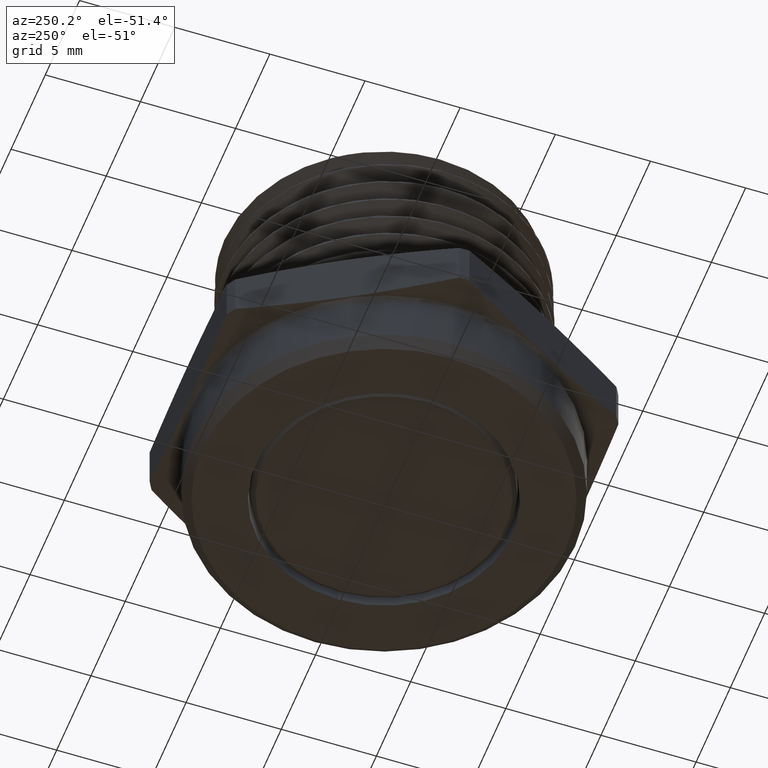
[diagram: clean part render]
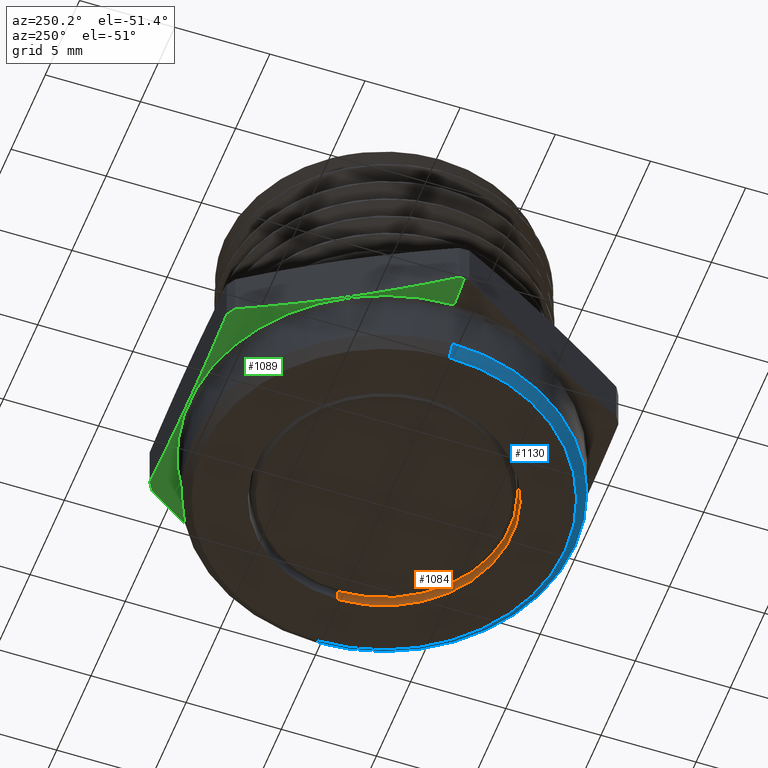
[diagram: same view with three faces highlighted in distinct colors, each labeled with its STEP entity id]
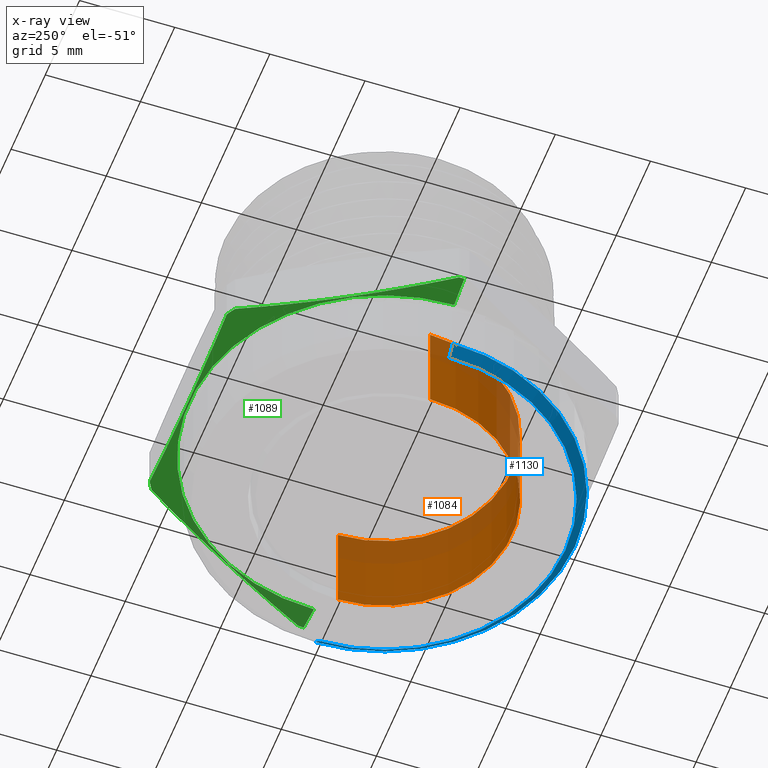
[diagram: x-ray of the same camera — body ghosted, the three highlighted faces saturated]
A machine part, auxiliary view with three faces highlighted in distinct colors.
The next image is the same camera in x-ray (body ghosted, the three faces saturated) — at least one of them is partly hidden behind the body in this view.
Their STEP definitions:

[orange] entity #1084 — the highlighted cylindrical surface (partial cylindrical patch) has radius 6.731 mm, axis along (0, 0, -1).
#148 = CIRCLE ( 'NONE', #2843, 0.2649999999999999600 ) ;
#162 = LINE ( 'NONE', #2186, #1503 ) ;
#705 = VERTEX_POINT ( 'NONE', #3298 ) ;
#711 = VERTEX_POINT ( 'NONE', #3282 ) ;
#756 = EDGE_LOOP ( 'NONE', ( #2370, #2384, #2369, #3367 ) ) ;
#889 = FACE_OUTER_BOUND ( 'NONE', #756, .T. ) ;
#892 = CYLINDRICAL_SURFACE ( 'NONE', #2776, 0.2649999999999999600 ) ;
#1084 = ADVANCED_FACE ( 'NONE', ( #889 ), #892, .F. ) ;
#1503 = VECTOR ( 'NONE', #2187, 39.37007874015748100 ) ;
#1504 = LINE ( 'NONE', #2181, #1507 ) ;
#1505 = CIRCLE ( 'NONE', #2850, 0.2649999999999999600 ) ;
#1507 = VECTOR ( 'NONE', #2182, 39.37007874015748100 ) ;
#2157 = CARTESIAN_POINT ( 'NONE',  ( -1.224646799147303500E-018, 0.0000000000000000000, 0.07099999999999999400 ) ) ;
#2158 = DIRECTION ( 'NONE',  ( -2.296162711943753400E-033, 0.0000000000000000000, 1.000000000000000000 ) ) ;
#2159 = DIRECTION ( 'NONE',  ( 1.000000000000000000, 0.0000000000000000000, 0.0000000000000000000 ) ) ;
#2181 = CARTESIAN_POINT ( 'NONE',  ( -0.2649999999999999600, 0.0000000000000000000, -0.1300000000000000000 ) ) ;
#2182 = DIRECTION ( 'NONE',  ( 2.296162711943753400E-033, -0.0000000000000000000, -1.000000000000000000 ) ) ;
#2186 = CARTESIAN_POINT ( 'NONE',  ( 0.2649999999999999600, 3.245314017740485600E-017, -0.1300000000000000000 ) ) ;
#2187 = DIRECTION ( 'NONE',  ( 2.296162711943753400E-033, -0.0000000000000000000, -1.000000000000000000 ) ) ;
#2188 = CARTESIAN_POINT ( 'NONE',  ( -1.224646799147303100E-018, 0.0000000000000000000, -0.1300000000000000000 ) ) ;
#2189 = DIRECTION ( 'NONE',  ( 2.296162711943753400E-033, -0.0000000000000000000, -1.000000000000000000 ) ) ;
#2190 = DIRECTION ( 'NONE',  ( -1.000000000000000000, 0.0000000000000000000, 0.0000000000000000000 ) ) ;
#2311 = EDGE_CURVE ( 'NONE', #711, #705, #148, .T. ) ;
#2322 = EDGE_CURVE ( 'NONE', #705, #3404, #162, .T. ) ;
#2323 = EDGE_CURVE ( 'NONE', #3404, #3403, #1505, .T. ) ;
#2324 = EDGE_CURVE ( 'NONE', #711, #3403, #1504, .T. ) ;
#2369 = ORIENTED_EDGE ( 'NONE', *, *, #2323, .T. ) ;
#2370 = ORIENTED_EDGE ( 'NONE', *, *, #2311, .T. ) ;
#2384 = ORIENTED_EDGE ( 'NONE', *, *, #2322, .T. ) ;
#2776 = AXIS2_PLACEMENT_3D ( 'NONE', #3263, #3264, #3265 ) ;
#2843 = AXIS2_PLACEMENT_3D ( 'NONE', #2157, #2158, #2159 ) ;
#2850 = AXIS2_PLACEMENT_3D ( 'NONE', #2188, #2189, #2190 ) ;
#3263 = CARTESIAN_POINT ( 'NONE',  ( -1.224646799147303100E-018, 0.0000000000000000000, -0.1300000000000000000 ) ) ;
#3264 = DIRECTION ( 'NONE',  ( 2.296162711943753400E-033, -0.0000000000000000000, -1.000000000000000000 ) ) ;
#3265 = DIRECTION ( 'NONE',  ( -1.000000000000000000, 0.0000000000000000000, 0.0000000000000000000 ) ) ;
#3282 = CARTESIAN_POINT ( 'NONE',  ( -0.2649999999999999600, 0.0000000000000000000, 0.07099999999999999400 ) ) ;
#3298 = CARTESIAN_POINT ( 'NONE',  ( 0.2649999999999999600, 3.245314017740485600E-017, 0.07099999999999999400 ) ) ;
#3367 = ORIENTED_EDGE ( 'NONE', *, *, #2324, .F. ) ;
#3403 = VERTEX_POINT ( 'NONE', #3527 ) ;
#3404 = VERTEX_POINT ( 'NONE', #3528 ) ;
#3527 = CARTESIAN_POINT ( 'NONE',  ( -0.2649999999999999600, 0.0000000000000000000, -0.1300000000000000000 ) ) ;
#3528 = CARTESIAN_POINT ( 'NONE',  ( 0.2649999999999999600, 3.245314017740485600E-017, -0.1300000000000000000 ) ) ;

[blue] entity #1130 — the highlighted conical surface has half-angle 45 deg.
#105 = FACE_OUTER_BOUND ( 'NONE', #1693, .T. ) ;
#109 = CONICAL_SURFACE ( 'NONE', #2815, 0.3750000000000008300, 0.7853981633974482800 ) ;
#451 = AXIS2_PLACEMENT_3D ( 'NONE', #5073, #5074, #5075 ) ;
#453 = AXIS2_PLACEMENT_3D ( 'NONE', #5079, #5080, #5081 ) ;
#713 = VERTEX_POINT ( 'NONE', #3280 ) ;
#1130 = ADVANCED_FACE ( 'NONE', ( #105 ), #109, .T. ) ;
#1506 = LINE ( 'NONE', #2192, #1511 ) ;
#1510 = LINE ( 'NONE', #2197, #1514 ) ;
#1511 = VECTOR ( 'NONE', #2191, 39.37007874015748900 ) ;
#1514 = VECTOR ( 'NONE', #2196, 39.37007874015748900 ) ;
#1613 = CIRCLE ( 'NONE', #451, 0.3950000000000000200 ) ;
#1616 = CIRCLE ( 'NONE', #453, 0.3750000000000008300 ) ;
#1693 = EDGE_LOOP ( 'NONE', ( #3068, #5429, #3075, #3055 ) ) ;
#2191 = DIRECTION ( 'NONE',  ( -0.7071067811865474600, 8.659560562354932900E-017, 0.7071067811865474600 ) ) ;
#2192 = CARTESIAN_POINT ( 'NONE',  ( -0.3750000000000008300, 4.592425496802585300E-017, -0.1300000000000000000 ) ) ;
#2196 = DIRECTION ( 'NONE',  ( 0.7071067811865474600, 0.0000000000000000000, 0.7071067811865474600 ) ) ;
#2197 = CARTESIAN_POINT ( 'NONE',  ( 0.3750000000000008300, 0.0000000000000000000, -0.1300000000000000000 ) ) ;
#2326 = EDGE_CURVE ( 'NONE', #713, #3400, #1506, .T. ) ;
#2328 = EDGE_CURVE ( 'NONE', #3405, #3401, #1510, .T. ) ;
#2815 = AXIS2_PLACEMENT_3D ( 'NONE', #3178, #3179, #3176 ) ;
#3055 = ORIENTED_EDGE ( 'NONE', *, *, #5546, .F. ) ;
#3068 = ORIENTED_EDGE ( 'NONE', *, *, #2326, .F. ) ;
#3075 = ORIENTED_EDGE ( 'NONE', *, *, #2328, .T. ) ;
#3176 = DIRECTION ( 'NONE',  ( 1.000000000000000000, 0.0000000000000000000, 0.0000000000000000000 ) ) ;
#3178 = CARTESIAN_POINT ( 'NONE',  ( 0.0000000000000000000, 0.0000000000000000000, -0.1300000000000000000 ) ) ;
#3179 = DIRECTION ( 'NONE',  ( 0.0000000000000000000, 0.0000000000000000000, 1.000000000000000000 ) ) ;
#3280 = CARTESIAN_POINT ( 'NONE',  ( -0.3750000000000008300, 4.714890176717314800E-017, -0.1300000000000000000 ) ) ;
#3400 = VERTEX_POINT ( 'NONE', #3524 ) ;
#3401 = VERTEX_POINT ( 'NONE', #3525 ) ;
#3405 = VERTEX_POINT ( 'NONE', #3529 ) ;
#3524 = CARTESIAN_POINT ( 'NONE',  ( -0.3950000000000000200, 4.837354856632044300E-017, -0.1100000000000008200 ) ) ;
#3525 = CARTESIAN_POINT ( 'NONE',  ( 0.3950000000000000200, 0.0000000000000000000, -0.1100000000000008200 ) ) ;
#3529 = CARTESIAN_POINT ( 'NONE',  ( 0.3750000000000008300, 0.0000000000000000000, -0.1300000000000000000 ) ) ;
#5073 = CARTESIAN_POINT ( 'NONE',  ( 0.0000000000000000000, 0.0000000000000000000, -0.1100000000000008200 ) ) ;
#5074 = DIRECTION ( 'NONE',  ( 0.0000000000000000000, 0.0000000000000000000, 1.000000000000000000 ) ) ;
#5075 = DIRECTION ( 'NONE',  ( -1.000000000000000000, 0.0000000000000000000, 0.0000000000000000000 ) ) ;
#5079 = CARTESIAN_POINT ( 'NONE',  ( 0.0000000000000000000, 0.0000000000000000000, -0.1300000000000000000 ) ) ;
#5080 = DIRECTION ( 'NONE',  ( 0.0000000000000000000, 0.0000000000000000000, -1.000000000000000000 ) ) ;
#5081 = DIRECTION ( 'NONE',  ( -1.000000000000000000, 0.0000000000000000000, 0.0000000000000000000 ) ) ;
#5429 = ORIENTED_EDGE ( 'NONE', *, *, #5548, .F. ) ;
#5546 = EDGE_CURVE ( 'NONE', #3400, #3401, #1613, .T. ) ;
#5548 = EDGE_CURVE ( 'NONE', #3405, #713, #1616, .T. ) ;

[green] entity #1089 — the highlighted conical surface has half-angle 78 deg.
#6 = B_SPLINE_CURVE_WITH_KNOTS ( 'NONE', 3,
 ( #2216, #2211, #2212, #2217, #2218 ),
 .UNSPECIFIED., .F., .F.,
 ( 4, 1, 4 ),
 ( 1.960092708425633100E-006, 0.005630175714662147500, 0.01125839133661586800 ),
 .UNSPECIFIED. ) ;
#7 = B_SPLINE_CURVE_WITH_KNOTS ( 'NONE', 3,
 ( #2219, #2220, #2224, #2225, #2226, #2227, #2228, #2229 ),
 .UNSPECIFIED., .F., .F.,
 ( 4, 2, 2, 4 ),
 ( 0.02276526748333866000, 0.02841013490012902000, 0.03123256860852419900, 0.03405500231691938100 ),
 .UNSPECIFIED. ) ;
#8 = B_SPLINE_CURVE_WITH_KNOTS ( 'NONE', 3,
 ( #2236, #2231, #2232, #2237, #2238 ),
 .UNSPECIFIED., .F., .F.,
 ( 4, 1, 4 ),
 ( 1.960092707744257800E-006, 0.005630175714661472600, 0.01125839133661520200 ),
 .UNSPECIFIED. ) ;
#26 = FACE_OUTER_BOUND ( 'NONE', #762, .T. ) ;
#34 = CONICAL_SURFACE ( 'NONE', #2779, 0.4616537180435968400, 1.361356816555583600 ) ;
#709 = VERTEX_POINT ( 'NONE', #3283 ) ;
#762 = EDGE_LOOP ( 'NONE', ( #3349, #3348, #3347, #3346, #3345, #3344, #3359, #3358, #3357, #3356 ) ) ;
#1089 = ADVANCED_FACE ( 'NONE', ( #26 ), #34, .T. ) ;
#1513 = CIRCLE ( 'NONE', #2854, 0.4029208830918225600 ) ;
#1516 = LINE ( 'NONE', #2205, #1520 ) ;
#1517 = CIRCLE ( 'NONE', #2858, 0.4616537180435968400 ) ;
#1519 = CIRCLE ( 'NONE', #2855, 0.4616537180435968400 ) ;
#1520 = VECTOR ( 'NONE', #2210, 39.37007874015748100 ) ;
#1521 = CIRCLE ( 'NONE', #2856, 0.4616537180435968400 ) ;
#1522 = CIRCLE ( 'NONE', #2857, 0.4616537180435968400 ) ;
#1525 = LINE ( 'NONE', #2239, #1526 ) ;
#1526 = VECTOR ( 'NONE', #2230, 39.37007874015748100 ) ;
#2205 = CARTESIAN_POINT ( 'NONE',  ( -0.4616537180435968400, 5.653627481165655800E-017, 0.01416768512986958000 ) ) ;
#2207 = CARTESIAN_POINT ( 'NONE',  ( 4.516955305409142200E-018, 0.0000000000000000000, 0.001683635675387737400 ) ) ;
#2208 = DIRECTION ( 'NONE',  ( 1.224646799147351200E-016, 0.0000000000000000000, 1.000000000000000000 ) ) ;
#2209 = DIRECTION ( 'NONE',  ( 1.000000000000000000, 0.0000000000000000000, -1.224922254911728200E-016 ) ) ;
#2210 = DIRECTION ( 'NONE',  ( -0.9781476007338069100, 1.197885328332319900E-016, 0.2079116908177530700 ) ) ;
#2211 = CARTESIAN_POINT ( 'NONE',  ( -0.2768791911317302600, 0.3304311734012691500, 0.006632204717234070800 ) ) ;
#2212 = CARTESIAN_POINT ( 'NONE',  ( -0.3507402885326975600, 0.2025000000000001000, -0.002381073483833798600 ) ) ;
#2213 = CARTESIAN_POINT ( 'NONE',  ( 1.735041024562223900E-018, 0.0000000000000000000, 0.01416768512986952400 ) ) ;
#2214 = DIRECTION ( 'NONE',  ( -1.224646799147351200E-016, -0.0000000000000000000, -1.000000000000000000 ) ) ;
#2215 = DIRECTION ( 'NONE',  ( -1.000000000000000000, 0.0000000000000000000, 1.201997518972976500E-016 ) ) ;
#2216 = CARTESIAN_POINT ( 'NONE',  ( -0.2399486424312463900, 0.3943967601019038300, 0.01416768512986958000 ) ) ;
#2217 = CARTESIAN_POINT ( 'NONE',  ( -0.4246013859336652500, 0.07456882659873086100, 0.006632204717234061300 ) ) ;
#2218 = CARTESIAN_POINT ( 'NONE',  ( -0.4615319346341489300, 0.01060323989809614500, 0.01416768512986958000 ) ) ;
#2219 = CARTESIAN_POINT ( 'NONE',  ( 0.2215832922029023500, 0.4049999999999999200, 0.01416768512986958000 ) ) ;
#2220 = CARTESIAN_POINT ( 'NONE',  ( 0.1478797044767210500, 0.4049999999999999700, 0.006648274219460699600 ) ) ;
#2221 = CARTESIAN_POINT ( 'NONE',  ( 1.735041024562223900E-018, 0.0000000000000000000, 0.01416768512986952400 ) ) ;
#2222 = DIRECTION ( 'NONE',  ( -1.224646799147351200E-016, -0.0000000000000000000, -1.000000000000000000 ) ) ;
#2223 = DIRECTION ( 'NONE',  ( -1.000000000000000000, 0.0000000000000000000, 1.201997518972976500E-016 ) ) ;
#2224 = CARTESIAN_POINT ( 'NONE',  ( 0.07410859054405144500, 0.4049999999999999200, 0.002134741231681155500 ) ) ;
#2225 = CARTESIAN_POINT ( 'NONE',  ( -0.03669986454074526700, 0.4050000000000000300, 0.002120999785831785600 ) ) ;
#2226 = CARTESIAN_POINT ( 'NONE',  ( -0.07366055179631743300, 0.4050000000000000300, 0.003208601197143945900 ) ) ;
#2227 = CARTESIAN_POINT ( 'NONE',  ( -0.1476261385661210300, 0.4049999999999999700, 0.007351879217885097500 ) ) ;
#2228 = CARTESIAN_POINT ( 'NONE',  ( -0.1846688683639230400, 0.4050000000000000300, 0.01040159001930988400 ) ) ;
#2229 = CARTESIAN_POINT ( 'NONE',  ( -0.2215832922029024900, 0.4049999999999999200, 0.01416768512986955200 ) ) ;
#2230 = DIRECTION ( 'NONE',  ( 0.9781476007338069100, 0.0000000000000000000, 0.2079116908177528500 ) ) ;
#2231 = CARTESIAN_POINT ( 'NONE',  ( 0.4246013859336650900, 0.07456882659873080600, 0.006632204717233938100 ) ) ;
#2232 = CARTESIAN_POINT ( 'NONE',  ( 0.3507402885326974500, 0.2025000000000000100, -0.002381073483833943900 ) ) ;
#2233 = CARTESIAN_POINT ( 'NONE',  ( 1.735041024562223900E-018, 0.0000000000000000000, 0.01416768512986952400 ) ) ;
#2234 = DIRECTION ( 'NONE',  ( -1.224646799147351200E-016, -0.0000000000000000000, -1.000000000000000000 ) ) ;
#2235 = DIRECTION ( 'NONE',  ( -1.000000000000000000, 0.0000000000000000000, 1.201997518972976500E-016 ) ) ;
#2236 = CARTESIAN_POINT ( 'NONE',  ( 0.4615319346341488200, 0.01060323989809610800, 0.01416768512986958000 ) ) ;
#2237 = CARTESIAN_POINT ( 'NONE',  ( 0.2768791911317297100, 0.3304311734012696000, 0.006632204717233957200 ) ) ;
#2238 = CARTESIAN_POINT ( 'NONE',  ( 0.2399486424312458100, 0.3943967601019041600, 0.01416768512986949500 ) ) ;
#2239 = CARTESIAN_POINT ( 'NONE',  ( 0.4616537180435968400, 0.0000000000000000000, 0.01416768512986946900 ) ) ;
#2240 = CARTESIAN_POINT ( 'NONE',  ( 1.735041024562223900E-018, 0.0000000000000000000, 0.01416768512986952400 ) ) ;
#2241 = DIRECTION ( 'NONE',  ( -1.224646799147351200E-016, -0.0000000000000000000, -1.000000000000000000 ) ) ;
#2242 = DIRECTION ( 'NONE',  ( -1.000000000000000000, 0.0000000000000000000, 1.201997518972976500E-016 ) ) ;
#2330 = EDGE_CURVE ( 'NONE', #3392, #3393, #1513, .T. ) ;
#2332 = EDGE_CURVE ( 'NONE', #3393, #3390, #1516, .T. ) ;
#2333 = EDGE_CURVE ( 'NONE', #3390, #3389, #1519, .T. ) ;
#2334 = EDGE_CURVE ( 'NONE', #3394, #3389, #6, .T. ) ;
#2335 = EDGE_CURVE ( 'NONE', #3394, #3387, #1521, .T. ) ;
#2336 = EDGE_CURVE ( 'NONE', #709, #3387, #7, .T. ) ;
#2337 = EDGE_CURVE ( 'NONE', #709, #3385, #1522, .T. ) ;
#2338 = EDGE_CURVE ( 'NONE', #3388, #3385, #8, .T. ) ;
#2339 = EDGE_CURVE ( 'NONE', #3388, #3383, #1517, .T. ) ;
#2340 = EDGE_CURVE ( 'NONE', #3392, #3383, #1525, .T. ) ;
#2779 = AXIS2_PLACEMENT_3D ( 'NONE', #3223, #3222, #3224 ) ;
#2854 = AXIS2_PLACEMENT_3D ( 'NONE', #2207, #2208, #2209 ) ;
#2855 = AXIS2_PLACEMENT_3D ( 'NONE', #2213, #2214, #2215 ) ;
#2856 = AXIS2_PLACEMENT_3D ( 'NONE', #2221, #2222, #2223 ) ;
#2857 = AXIS2_PLACEMENT_3D ( 'NONE', #2233, #2234, #2235 ) ;
#2858 = AXIS2_PLACEMENT_3D ( 'NONE', #2240, #2241, #2242 ) ;
#3222 = DIRECTION ( 'NONE',  ( 1.224646799147351200E-016, 0.0000000000000000000, 1.000000000000000000 ) ) ;
#3223 = CARTESIAN_POINT ( 'NONE',  ( 1.735041024562223900E-018, 0.0000000000000000000, 0.01416768512986952400 ) ) ;
#3224 = DIRECTION ( 'NONE',  ( 1.000000000000000000, 0.0000000000000000000, -1.201997518972976500E-016 ) ) ;
#3283 = CARTESIAN_POINT ( 'NONE',  ( 0.2215832922029023500, 0.4049999999999999200, 0.01416768512986958000 ) ) ;
#3344 = ORIENTED_EDGE ( 'NONE', *, *, #2336, .F. ) ;
#3345 = ORIENTED_EDGE ( 'NONE', *, *, #2335, .T. ) ;
#3346 = ORIENTED_EDGE ( 'NONE', *, *, #2334, .F. ) ;
#3347 = ORIENTED_EDGE ( 'NONE', *, *, #2333, .T. ) ;
#3348 = ORIENTED_EDGE ( 'NONE', *, *, #2332, .T. ) ;
#3349 = ORIENTED_EDGE ( 'NONE', *, *, #2330, .T. ) ;
#3356 = ORIENTED_EDGE ( 'NONE', *, *, #2340, .F. ) ;
#3357 = ORIENTED_EDGE ( 'NONE', *, *, #2339, .T. ) ;
#3358 = ORIENTED_EDGE ( 'NONE', *, *, #2338, .F. ) ;
#3359 = ORIENTED_EDGE ( 'NONE', *, *, #2337, .T. ) ;
#3383 = VERTEX_POINT ( 'NONE', #3500 ) ;
#3385 = VERTEX_POINT ( 'NONE', #3509 ) ;
#3387 = VERTEX_POINT ( 'NONE', #3511 ) ;
#3388 = VERTEX_POINT ( 'NONE', #3512 ) ;
#3389 = VERTEX_POINT ( 'NONE', #3513 ) ;
#3390 = VERTEX_POINT ( 'NONE', #3514 ) ;
#3392 = VERTEX_POINT ( 'NONE', #3516 ) ;
#3393 = VERTEX_POINT ( 'NONE', #3517 ) ;
#3394 = VERTEX_POINT ( 'NONE', #3518 ) ;
#3500 = CARTESIAN_POINT ( 'NONE',  ( 0.4616537180435968400, 0.0000000000000000000, 0.01416768512986946900 ) ) ;
#3509 = CARTESIAN_POINT ( 'NONE',  ( 0.2399486424312458100, 0.3943967601019041600, 0.01416768512986949500 ) ) ;
#3511 = CARTESIAN_POINT ( 'NONE',  ( -0.2215832922029024900, 0.4049999999999999200, 0.01416768512986955200 ) ) ;
#3512 = CARTESIAN_POINT ( 'NONE',  ( 0.4615319346341488200, 0.01060323989809610800, 0.01416768512986958000 ) ) ;
#3513 = CARTESIAN_POINT ( 'NONE',  ( -0.4615319346341489300, 0.01060323989809614500, 0.01416768512986958000 ) ) ;
#3514 = CARTESIAN_POINT ( 'NONE',  ( -0.4616537180435968400, 0.0000000000000000000, 0.01416768512986958000 ) ) ;
#3516 = CARTESIAN_POINT ( 'NONE',  ( 0.4029208830918218900, 0.0000000000000000000, 0.001683635675387688400 ) ) ;
#3517 = CARTESIAN_POINT ( 'NONE',  ( -0.4029208830918218900, 4.934357697880245400E-017, 0.001683635675387786700 ) ) ;
#3518 = CARTESIAN_POINT ( 'NONE',  ( -0.2399486424312463900, 0.3943967601019038300, 0.01416768512986958000 ) ) ;